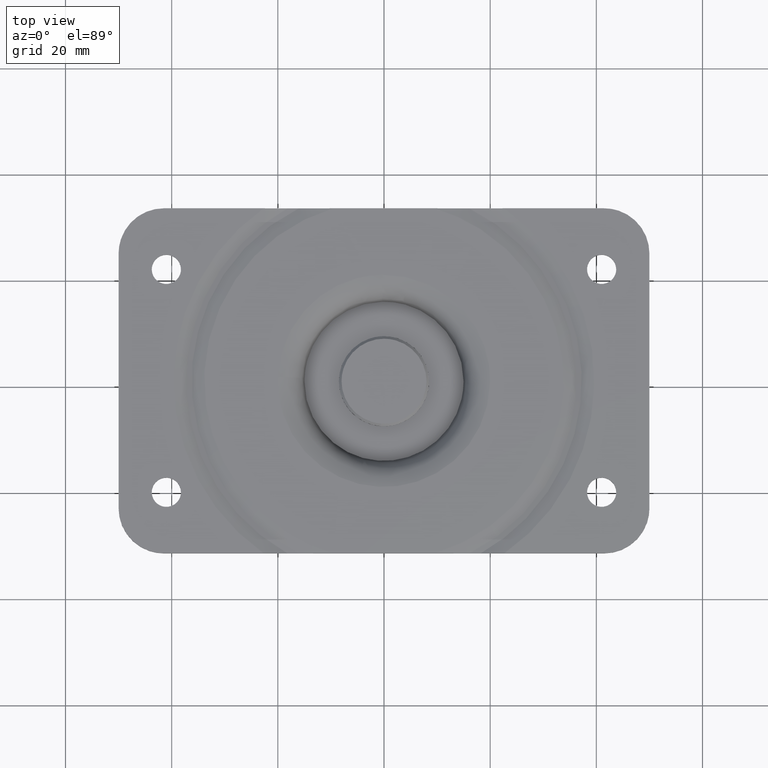
[diagram: clean part render]
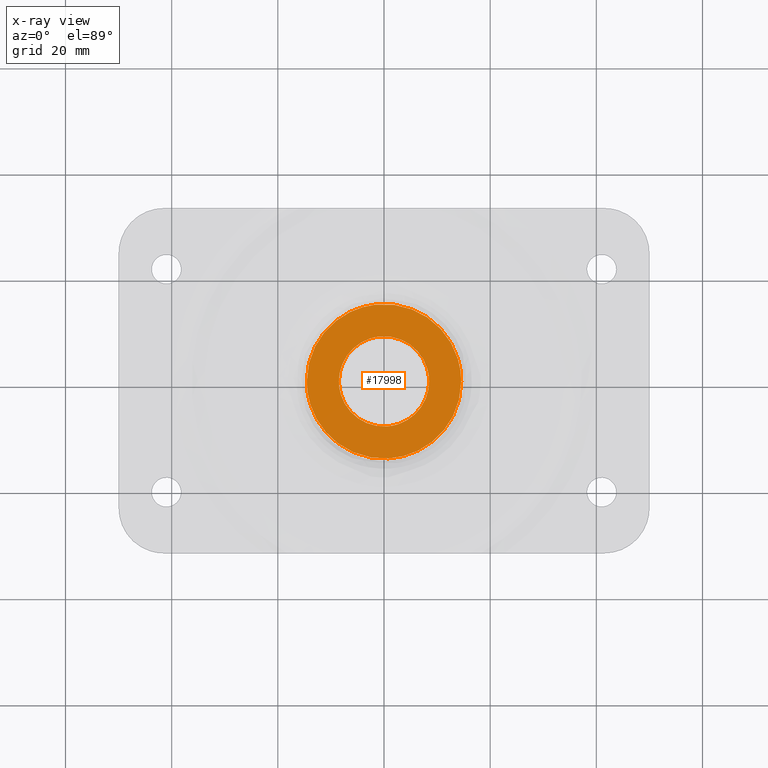
[diagram: x-ray — body ghosted, one internal face saturated and labeled with its STEP entity id]
A machine part, top view, then the same camera in x-ray: the body is ghosted and one INTERNAL B-rep face — a face not visible from any outside direction — is saturated and labeled: STEP entity #17998.
In plain terms, the highlighted face is a freeform B-spline surface patch.
Its self-contained STEP definition (entity closure, byte-faithful):
#12054=CARTESIAN_POINT('',(-0.666902313780487,8.473797336724205,-6.790976186007439));
#12055=VERTEX_POINT('',#12054);
#12061=CARTESIAN_POINT('',(-8.500000000000000,0.0,-6.790976186007440));
#12062=VERTEX_POINT('',#12061);
#12063=CARTESIAN_POINT('',(-8.500000000000000,0.0,-6.790976186007440));
#12064=CARTESIAN_POINT('',(-8.500000000000002,7.857319178920273,-6.790976186007442));
#12065=CARTESIAN_POINT('',(-0.666902313780487,8.473797336724205,-6.790976186007440));
#12073=(BOUNDED_CURVE()B_SPLINE_CURVE(2,(#12063,#12064,#12065),.UNSPECIFIED.,.F.,.U.)B_SPLINE_CURVE_WITH_KNOTS((3,3),(0.0,0.236331300628972),.UNSPECIFIED.)CURVE()GEOMETRIC_REPRESENTATION_ITEM()RATIONAL_B_SPLINE_CURVE((1.0,0.723120658609643,0.969723356163895))REPRESENTATION_ITEM(''));
#12074=EDGE_CURVE('',#12062,#12055,#12073,.T.);
#12076=CARTESIAN_POINT('',(0.666902313780490,-8.473797336724203,-6.790976186007441));
#12077=VERTEX_POINT('',#12076);
#12078=CARTESIAN_POINT('',(0.666902313780490,-8.473797336724203,-6.790976186007441));
#12079=CARTESIAN_POINT('',(0.333965909659432,-8.500000000000000,-6.790976186007439));
#12080=CARTESIAN_POINT('',(0.0,-8.500000000000000,-6.790976186007440));
#12081=CARTESIAN_POINT('',(-8.500000000000002,-8.500000000000002,-6.790976186007440));
#12082=CARTESIAN_POINT('',(-8.500000000000000,0.0,-6.790976186007440));
#12090=(BOUNDED_CURVE()B_SPLINE_CURVE(2,(#12078,#12079,#12080,#12081,#12082),.UNSPECIFIED.,.F.,.U.)B_SPLINE_CURVE_WITH_KNOTS((3,2,3),(0.736331300628972,0.750000000000000,1.0),.UNSPECIFIED.)CURVE()GEOMETRIC_REPRESENTATION_ITEM()RATIONAL_B_SPLINE_CURVE((0.969723356163895,0.983986122576904,1.0,0.707106781186548,1.0))REPRESENTATION_ITEM(''));
#12091=EDGE_CURVE('',#12077,#12062,#12090,.T.);
#12167=CARTESIAN_POINT('',(8.500000000000000,0.0,-6.790976186007440));
#12168=VERTEX_POINT('',#12167);
#12169=CARTESIAN_POINT('',(8.500000000000000,0.0,-6.790976186007440));
#12170=CARTESIAN_POINT('',(8.500000000000000,-7.857319178920251,-6.790976186007441));
#12171=CARTESIAN_POINT('',(0.666902313780490,-8.473797336724203,-6.790976186007441));
#12179=(BOUNDED_CURVE()B_SPLINE_CURVE(2,(#12169,#12170,#12171),.UNSPECIFIED.,.F.,.U.)B_SPLINE_CURVE_WITH_KNOTS((3,3),(0.500000000000000,0.736331300628971),.UNSPECIFIED.)CURVE()GEOMETRIC_REPRESENTATION_ITEM()RATIONAL_B_SPLINE_CURVE((1.0,0.723120658609644,0.969723356163894))REPRESENTATION_ITEM(''));
#12180=EDGE_CURVE('',#12168,#12077,#12179,.T.);
#12182=CARTESIAN_POINT('',(-0.666902313780487,8.473797336724205,-6.790976186007439));
#12183=CARTESIAN_POINT('',(-0.333965909659429,8.499999999999998,-6.790976186007440));
#12184=CARTESIAN_POINT('',(0.0,8.500000000000000,-6.790976186007440));
#12185=CARTESIAN_POINT('',(8.500000000000002,8.500000000000002,-6.790976186007440));
#12186=CARTESIAN_POINT('',(8.500000000000000,0.0,-6.790976186007440));
#12194=(BOUNDED_CURVE()B_SPLINE_CURVE(2,(#12182,#12183,#12184,#12185,#12186),.UNSPECIFIED.,.F.,.U.)B_SPLINE_CURVE_WITH_KNOTS((3,2,3),(0.236331300628972,0.250000000000000,0.500000000000000),.UNSPECIFIED.)CURVE()GEOMETRIC_REPRESENTATION_ITEM()RATIONAL_B_SPLINE_CURVE((0.969723356163895,0.983986122576904,1.0,0.707106781186548,1.0))REPRESENTATION_ITEM(''));
#12195=EDGE_CURVE('',#12055,#12168,#12194,.T.);
#13053=CARTESIAN_POINT('',(-1.717074454153115,14.445758122230201,-6.790976186014687));
#13054=VERTEX_POINT('',#13053);
#13055=CARTESIAN_POINT('',(14.547449000000000,0.0,-6.790976186007470));
#13056=VERTEX_POINT('',#13055);
#13057=CARTESIAN_POINT('',(-1.717074454153115,14.445758122230197,-6.790976186014687));
#13058=CARTESIAN_POINT('',(-0.861548463600572,14.547449000000006,-6.790976186007470));
#13059=CARTESIAN_POINT('',(0.0,14.547449000000000,-6.790976186007470));
#13060=CARTESIAN_POINT('',(14.547448999999999,14.547448999999999,-6.790976186007470));
#13061=CARTESIAN_POINT('',(14.547449000000000,0.0,-6.790976186007470));
#13069=(BOUNDED_CURVE()B_SPLINE_CURVE(2,(#13057,#13058,#13059,#13060,#13061),.UNSPECIFIED.,.F.,.U.)B_SPLINE_CURVE_WITH_KNOTS((3,2,3),(0.229562737387603,0.250000000000000,0.500000000000000),.UNSPECIFIED.)CURVE()GEOMETRIC_REPRESENTATION_ITEM()RATIONAL_B_SPLINE_CURVE((0.956027271388376,0.976056257478876,1.0,0.707106781186548,1.0))REPRESENTATION_ITEM(''));
#13070=EDGE_CURVE('',#13054,#13056,#13069,.T.);
#13072=CARTESIAN_POINT('',(0.888100515481090,-14.520315075162911,-6.790976186007470));
#13073=VERTEX_POINT('',#13072);
#13074=CARTESIAN_POINT('',(14.547449000000000,0.0,-6.790976186007470));
#13075=CARTESIAN_POINT('',(14.547449000000007,-13.684873532162765,-6.790976186007471));
#13076=CARTESIAN_POINT('',(0.888100515481090,-14.520315075162902,-6.790976186007470));
#13084=(BOUNDED_CURVE()B_SPLINE_CURVE(2,(#13074,#13075,#13076),.UNSPECIFIED.,.F.,.U.)B_SPLINE_CURVE_WITH_KNOTS((3,3),(0.500000000000000,0.739332962240226),.UNSPECIFIED.)CURVE()GEOMETRIC_REPRESENTATION_ITEM()RATIONAL_B_SPLINE_CURVE((1.0,0.719603993285207,0.976072041669468))REPRESENTATION_ITEM(''));
#13085=EDGE_CURVE('',#13056,#13073,#13084,.T.);
#13156=CARTESIAN_POINT('',(-14.547449000000000,0.0,-6.790976186007470));
#13157=VERTEX_POINT('',#13156);
#13158=CARTESIAN_POINT('',(-14.547449000000000,0.0,-6.790976186007470));
#13159=CARTESIAN_POINT('',(-14.547449000000006,12.920693934997992,-6.790976186007469));
#13160=CARTESIAN_POINT('',(-1.717074454153115,14.445758122230197,-6.790976186014687));
#13168=(BOUNDED_CURVE()B_SPLINE_CURVE(2,(#13158,#13159,#13160),.UNSPECIFIED.,.F.,.U.)B_SPLINE_CURVE_WITH_KNOTS((3,3),(0.0,0.229562737387603),.UNSPECIFIED.)CURVE()GEOMETRIC_REPRESENTATION_ITEM()RATIONAL_B_SPLINE_CURVE((1.0,0.731050523707671,0.956027271388376))REPRESENTATION_ITEM(''));
#13169=EDGE_CURVE('',#13157,#13054,#13168,.T.);
#13203=CARTESIAN_POINT('',(0.888100515481090,-14.520315075162902,-6.790976186007470));
#13204=CARTESIAN_POINT('',(0.444464765968774,-14.547448999999995,-6.790976186007470));
#13205=CARTESIAN_POINT('',(0.0,-14.547449000000000,-6.790976186007470));
#13206=CARTESIAN_POINT('',(-14.547448999999999,-14.547448999999999,-6.790976186007470));
#13207=CARTESIAN_POINT('',(-14.547449000000000,0.0,-6.790976186007470));
#13215=(BOUNDED_CURVE()B_SPLINE_CURVE(2,(#13203,#13204,#13205,#13206,#13207),.UNSPECIFIED.,.F.,.U.)B_SPLINE_CURVE_WITH_KNOTS((3,2,3),(0.739332962240227,0.750000000000000,1.0),.UNSPECIFIED.)CURVE()GEOMETRIC_REPRESENTATION_ITEM()RATIONAL_B_SPLINE_CURVE((0.976072041669469,0.987502787901342,1.0,0.707106781186548,1.0))REPRESENTATION_ITEM(''));
#13216=EDGE_CURVE('',#13073,#13157,#13215,.T.);
#17981=CARTESIAN_POINT('',(16.000739371830530,-16.000385026730189,-6.790976186007470));
#17982=CARTESIAN_POINT('',(-16.000739892087850,-16.000385026730189,-6.790976186007470));
#17983=CARTESIAN_POINT('',(16.000739371830530,16.000474510988880,-6.790976186007470));
#17984=CARTESIAN_POINT('',(-16.000739892087850,16.000474510988880,-6.790976186007470));
#17985=B_SPLINE_SURFACE_WITH_KNOTS('',1,1,((#17981,#17983),(#17982,#17984)),.UNSPECIFIED.,.F.,.F.,.U.,(2,2),(2,2),(0.0,32.001479263918377),(0.0,32.000859537719073),.UNSPECIFIED.);
#17986=ORIENTED_EDGE('',*,*,#13216,.F.);
#17987=ORIENTED_EDGE('',*,*,#13085,.F.);
#17988=ORIENTED_EDGE('',*,*,#13070,.F.);
#17989=ORIENTED_EDGE('',*,*,#13169,.F.);
#17990=EDGE_LOOP('',(#17986,#17987,#17988,#17989));
#17991=FACE_OUTER_BOUND('',#17990,.T.);
#17992=ORIENTED_EDGE('',*,*,#12180,.T.);
#17993=ORIENTED_EDGE('',*,*,#12091,.T.);
#17994=ORIENTED_EDGE('',*,*,#12074,.T.);
#17995=ORIENTED_EDGE('',*,*,#12195,.T.);
#17996=EDGE_LOOP('',(#17992,#17993,#17994,#17995));
#17997=FACE_BOUND('',#17996,.T.);
#17998=ADVANCED_FACE('',(#17991,#17997),#17985,.F.);